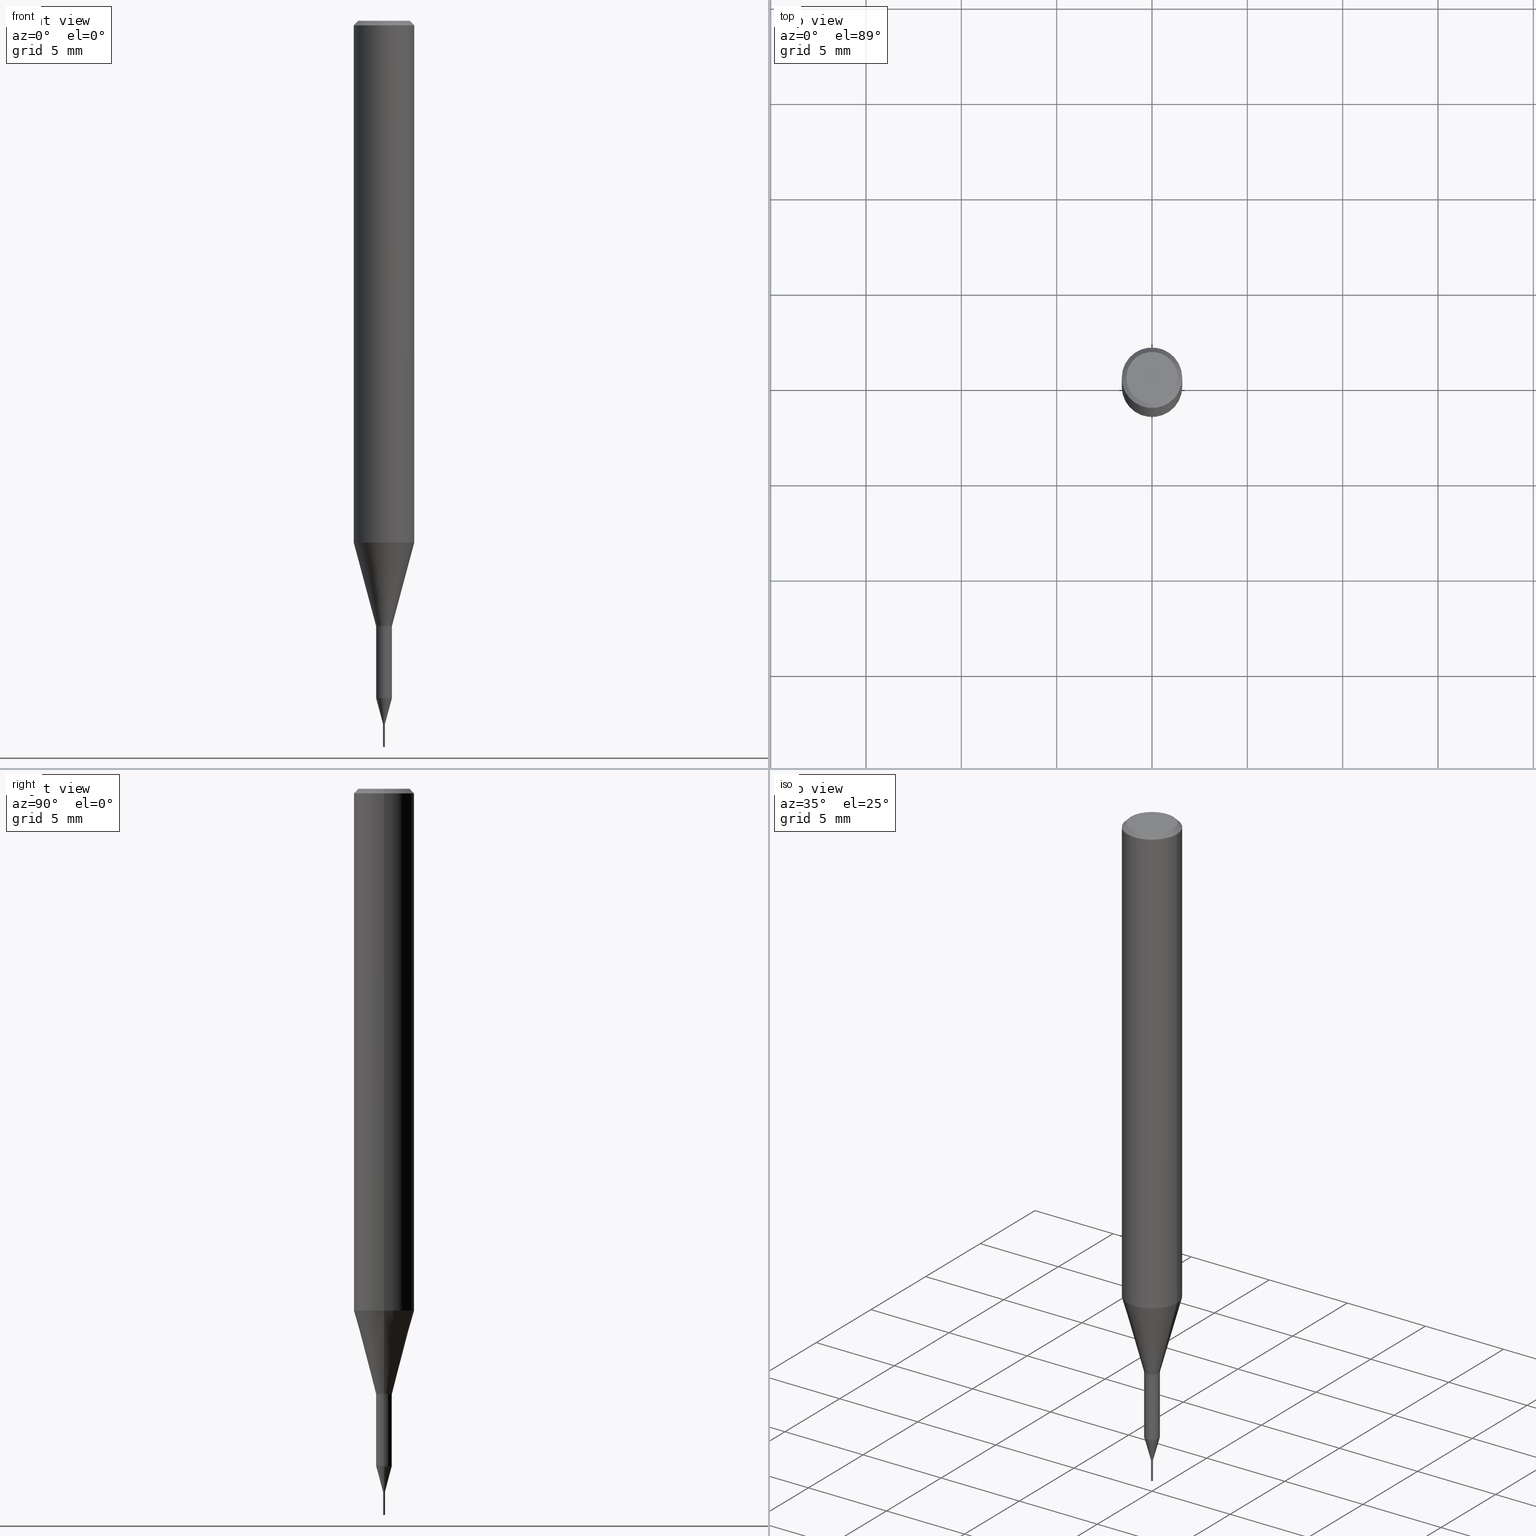
[diagram: canonical four-view strip — front | top / right | iso, engineering-drawing reading convention]
A machine part, canonical four-view strip (front | top / right | iso — engineering-drawing reading convention). The complete STEP part file that produces these views, byte-faithful:
ISO-10303-21;
HEADER;
FILE_DESCRIPTION (( 'STEP AP203' ),
    '1' );
FILE_NAME ('07088.STEP',
    '2024-04-19T13:29:47',
    ( '' ),
    ( '' ),
    'SwSTEP 2.0',
    'SolidWorks 2023',
    '' );
FILE_SCHEMA (( 'CONFIG_CONTROL_DESIGN' ));
ENDSEC;

DATA;
#1 = CARTESIAN_POINT ( 'NONE',  ( -0.06250000000000000000, 4.037025298037369984E-16, -0.009375000000000060368 ) ) ;
#2 = EDGE_CURVE ( 'NONE', #25, #162, #123, .T. ) ;
#3 = DIRECTION ( 'NONE',  ( -2.445468806185136597E-29, 3.491481338843145583E-15, 1.000000000000000000 ) ) ;
#4 = VECTOR ( 'NONE', #464, 39.37007874015748854 ) ;
#5 = AXIS2_PLACEMENT_3D ( 'NONE', #499, #407, #282 ) ;
#6 = FACE_OUTER_BOUND ( 'NONE', #204, .T. ) ;
#7 = DIRECTION ( 'NONE',  ( 1.000000000000000000, -6.982962677686258033E-15, 0.000000000000000000 ) ) ;
#8 = PLANE ( 'NONE',  #51 ) ;
#9 = ORIENTED_EDGE ( 'NONE', *, *, #19, .T. ) ;
#10 = EDGE_CURVE ( 'NONE', #257, #356, #535, .T. ) ;
#11 = CARTESIAN_POINT ( 'NONE',  ( 3.570384457030299835E-29, -5.097562754710993158E-15, -1.459999999999999964 ) ) ;
#12 = PERSON_AND_ORGANIZATION_ROLE ( 'design_supplier' ) ;
#13 = CIRCLE ( 'NONE', #309, 0.01624999999999999709 ) ;
#14 = DIRECTION ( 'NONE',  ( -2.445468806185136597E-29, 3.491481338843145583E-15, 1.000000000000000000 ) ) ;
#15 = CC_DESIGN_APPROVAL ( #29, ( #164 ) ) ;
#16 = CARTESIAN_POINT ( 'NONE',  ( 0.05312499999999999861, -4.129888592719939842E-16, -5.787680772767651417E-18 ) ) ;
#17 = DIRECTION ( 'NONE',  ( 1.000000000000000000, -6.982962677686258033E-15, 0.000000000000000000 ) ) ;
#18 = COORDINATED_UNIVERSAL_TIME_OFFSET ( 5, 0, .BEHIND. ) ;
#19 = EDGE_CURVE ( 'NONE', #200, #25, #244, .T. ) ;
#20 = ORIENTED_EDGE ( 'NONE', *, *, #260, .F. ) ;
#21 = FACE_OUTER_BOUND ( 'NONE', #283, .T. ) ;
#22 = EDGE_CURVE ( 'NONE', #178, #585, #268, .T. ) ;
#23 = CARTESIAN_POINT ( 'NONE',  ( 3.569161722627207033E-29, -5.095817014041571654E-15, -1.459500000000000020 ) ) ;
#24 = CIRCLE ( 'NONE', #333, 0.01624999999999999709 ) ;
#25 = VERTEX_POINT ( 'NONE', #211 ) ;
#26 = AXIS2_PLACEMENT_3D ( 'NONE', #147, #565, #526 ) ;
#27 = DIRECTION ( 'NONE',  ( -2.445468806185136877E-29, 3.491481338843145188E-15, 1.000000000000000000 ) ) ;
#28 = EDGE_LOOP ( 'NONE', ( #489, #231, #439, #350 ) ) ;
#29 = APPROVAL ( #65, 'UNSPECIFIED' ) ;
#30 = ADVANCED_FACE ( 'NONE', ( #408 ), #507, .T. ) ;
#31 = CARTESIAN_POINT ( 'NONE',  ( 3.570384457030299835E-29, -5.097562754710993158E-15, -1.459999999999999964 ) ) ;
#32 = ORIENTED_EDGE ( 'NONE', *, *, #10, .T. ) ;
#33 = ORIENTED_EDGE ( 'NONE', *, *, #531, .T. ) ;
#34 = MANIFOLD_SOLID_BREP ( 'Body-Move/Copy2[2]', #440 ) ;
#35 = VECTOR ( 'NONE', #140, 39.37007874015748854 ) ;
#36 = APPROVAL_PERSON_ORGANIZATION ( #90, #114, #55 ) ;
#37 = ADVANCED_FACE ( 'NONE', ( #400 ), #447, .F. ) ;
#38 = ORIENTED_EDGE ( 'NONE', *, *, #367, .F. ) ;
#39 = DIRECTION ( 'NONE',  ( -2.438088387897960049E-29, 3.491481338843145188E-15, 1.000000000000000000 ) ) ;
#40 = ADVANCED_FACE ( 'NONE', ( #117 ), #133, .T. ) ;
#41 = MANIFOLD_SOLID_BREP ( 'Body-Move/Copy2[1]', #166 ) ;
#42 = ORIENTED_EDGE ( 'NONE', *, *, #393, .F. ) ;
#43 = CC_DESIGN_PERSON_AND_ORGANIZATION_ASSIGNMENT ( #516, #57, ( #164 ) ) ;
#44 = DIRECTION ( 'NONE',  ( -2.445468806185136597E-29, 3.491481338843145583E-15, 1.000000000000000000 ) ) ;
#45 = VECTOR ( 'NONE', #339, 39.37007874015747433 ) ;
#46 = AXIS2_PLACEMENT_3D ( 'NONE', #285, #328, #559 ) ;
#47 = CARTESIAN_POINT ( 'NONE',  ( 0.000000000000000000, 0.000000000000000000, 0.000000000000000000 ) ) ;
#48 = EDGE_CURVE ( 'NONE', #178, #162, #79, .T. ) ;
#49 = EDGE_LOOP ( 'NONE', ( #490, #20 ) ) ;
#50 = DIRECTION ( 'NONE',  ( 1.000000000000000000, -6.982962677686264344E-15, 0.000000000000000000 ) ) ;
#51 = AXIS2_PLACEMENT_3D ( 'NONE', #86, #457, #511 ) ;
#52 = ORIENTED_EDGE ( 'NONE', *, *, #202, .T. ) ;
#53 = APPROVAL_PERSON_ORGANIZATION ( #436, #294, #569 ) ;
#54 = ADVANCED_FACE ( 'NONE', ( #187 ), #275, .T. ) ;
#55 = APPROVAL_ROLE ( '' ) ;
#56 = CARTESIAN_POINT ( 'NONE',  ( -0.01625000000000000056, -4.768484712498295341E-15, -1.398818275992143922 ) ) ;
#57 = PERSON_AND_ORGANIZATION_ROLE ( 'creator' ) ;
#58 = EDGE_CURVE ( 'NONE', #391, #25, #152, .T. ) ;
#59 = FACE_OUTER_BOUND ( 'NONE', #503, .T. ) ;
#60 = CARTESIAN_POINT ( 'NONE',  ( -1.396592535533682871E-17, -0.002000000000005097960, -1.459999999999999964 ) ) ;
#61 = AXIS2_PLACEMENT_3D ( 'NONE', #31, #214, #541 ) ;
#62 = AXIS2_PLACEMENT_3D ( 'NONE', #502, #410, #227 ) ;
#63 = DIRECTION ( 'NONE',  ( 2.461818195733172515E-29, -3.468068082460894112E-15, -1.000000000000000000 ) ) ;
#64 = CARTESIAN_POINT ( 'NONE',  ( -0.002000000000000074201, -5.068513104305707967E-15, -1.452000000000000179 ) ) ;
#65 = APPROVAL_STATUS ( 'not_yet_approved' ) ;
#66 = ORIENTED_EDGE ( 'NONE', *, *, #175, .T. ) ;
#67 = ORIENTED_EDGE ( 'NONE', *, *, #365, .F. ) ;
#68 = CARTESIAN_POINT ( 'NONE',  ( 0.000000000000000000, 0.000000000000000000, 0.000000000000000000 ) ) ;
#69 = EDGE_LOOP ( 'NONE', ( #52, #542, #91, #233 ) ) ;
#70 = ORIENTED_EDGE ( 'NONE', *, *, #139, .T. ) ;
#71 = CYLINDRICAL_SURFACE ( 'NONE', #106, 0.01624999999999999709 ) ;
#72 = AXIS2_PLACEMENT_3D ( 'NONE', #23, #406, #127 ) ;
#73 = AXIS2_PLACEMENT_3D ( 'NONE', #523, #63, #346 ) ;
#74 = ORIENTED_EDGE ( 'NONE', *, *, #539, .F. ) ;
#75 = EDGE_CURVE ( 'NONE', #262, #530, #195, .T. ) ;
#76 = CARTESIAN_POINT ( 'NONE',  ( -1.396592535533587345E-17, -0.002000000000005232401, -1.498798278761945157 ) ) ;
#77 = EDGE_CURVE ( 'NONE', #170, #483, #360, .T. ) ;
#78 = CARTESIAN_POINT ( 'NONE',  ( 2.292627005798580623E-31, -3.273263755165470184E-17, -0.009375000000000060368 ) ) ;
#79 = CIRCLE ( 'NONE', #561, 0.01625000000000000056 ) ;
#80 = DIRECTION ( 'NONE',  ( 2.445468806185136597E-29, -3.491481338843145583E-15, -1.000000000000000000 ) ) ;
#81 = ORIENTED_EDGE ( 'NONE', *, *, #48, .F. ) ;
#82 = EDGE_CURVE ( 'NONE', #585, #403, #13, .T. ) ;
#83 = CARTESIAN_POINT ( 'NONE',  ( 1.421085471523866447E-17, 0.001999999999994902557, -1.459999999999999964 ) ) ;
#84 = ORIENTED_EDGE ( 'NONE', *, *, #75, .F. ) ;
#85 = ORIENTED_EDGE ( 'NONE', *, *, #365, .T. ) ;
#86 = CARTESIAN_POINT ( 'NONE',  ( 7.076796394983739835E-47, -1.010378970665454992E-32, -2.893840386385196200E-18 ) ) ;
#87 = ORIENTED_EDGE ( 'NONE', *, *, #82, .F. ) ;
#88 = AXIS2_PLACEMENT_3D ( 'NONE', #475, #524, #343 ) ;
#89 = AXIS2_PLACEMENT_3D ( 'NONE', #130, #176, #319 ) ;
#90 = PERSON_AND_ORGANIZATION ( #253, #217 ) ;
#91 = ORIENTED_EDGE ( 'NONE', *, *, #531, .F. ) ;
#92 = DIRECTION ( 'NONE',  ( -2.445468806185136877E-29, 3.491481338843145188E-15, 1.000000000000000000 ) ) ;
#93 = EDGE_CURVE ( 'NONE', #437, #353, #332, .T. ) ;
#94 = ORIENTED_EDGE ( 'NONE', *, *, #521, .T. ) ;
#95 = LINE ( 'NONE', #558, #549 ) ;
#96 = AXIS2_PLACEMENT_3D ( 'NONE', #223, #568, #477 ) ;
#97 = EDGE_LOOP ( 'NONE', ( #216, #141, #105, #38 ) ) ;
#98 = AXIS2_PLACEMENT_3D ( 'NONE', #461, #327, #518 ) ;
#99 = LINE ( 'NONE', #230, #536 ) ;
#100 = CC_DESIGN_DATE_AND_TIME_ASSIGNMENT ( #194, #472, ( #219 ) ) ;
#101 = CARTESIAN_POINT ( 'NONE',  ( 0.01625000000000000056, -4.997421050571713203E-15, -1.398818275992143922 ) ) ;
#102 = CARTESIAN_POINT ( 'NONE',  ( -0.06250000000000006939, 4.440892098500631092E-16, -3.074334431409319267E-30 ) ) ;
#103 = PERSON_AND_ORGANIZATION ( #253, #217 ) ;
#104 = LINE ( 'NONE', #381, #208 ) ;
#105 = ORIENTED_EDGE ( 'NONE', *, *, #445, .T. ) ;
#106 = AXIS2_PLACEMENT_3D ( 'NONE', #68, #349, #197 ) ;
#107 =( CONVERSION_BASED_UNIT ( 'INCH', #388 ) LENGTH_UNIT ( ) NAMED_UNIT ( #486 ) );
#108 = CC_DESIGN_APPROVAL ( #114, ( #219 ) ) ;
#109 = ADVANCED_FACE ( 'NONE', ( #6 ), #198, .T. ) ;
#110 = DIRECTION ( 'NONE',  ( -2.461818195733173075E-29, 3.468068082460893717E-15, 1.000000000000000000 ) ) ;
#111 = CARTESIAN_POINT ( 'NONE',  ( 3.570384457030299835E-29, -5.097562754710993158E-15, -1.459999999999999964 ) ) ;
#112 = DIRECTION ( 'NONE',  ( -2.445468806185136597E-29, 3.491481338843145583E-15, 1.000000000000000000 ) ) ;
#113 = CARTESIAN_POINT ( 'NONE',  ( -0.06250000000000012490, -3.317607122755211895E-15, -1.077392650149939346 ) ) ;
#114 = APPROVAL ( #335, 'UNSPECIFIED' ) ;
#115 = ORIENTED_EDGE ( 'NONE', *, *, #202, .F. ) ;
#116 = DIRECTION ( 'NONE',  ( 0.2588190451025214611, 1.565188264969621573E-15, 0.9659258262890682012 ) ) ;
#117 = FACE_OUTER_BOUND ( 'NONE', #469, .T. ) ;
#118 = CONICAL_SURFACE ( 'NONE', #420, 65.52281426577367540, 1.029744258676689839 ) ;
#119 = ORIENTED_EDGE ( 'NONE', *, *, #145, .F. ) ;
#120 = EDGE_LOOP ( 'NONE', ( #174, #9, #494, #81 ) ) ;
#121 = DIRECTION ( 'NONE',  ( -2.445468806185136597E-29, 3.491481338843145583E-15, 1.000000000000000000 ) ) ;
#122 = EDGE_LOOP ( 'NONE', ( #128, #287 ) ) ;
#123 = LINE ( 'NONE', #276, #544 ) ;
#124 = DIRECTION ( 'NONE',  ( 0.2588190451025203509, 1.565188264969630053E-15, 0.9659258262890684232 ) ) ;
#125 = VERTEX_POINT ( 'NONE', #326 ) ;
#126 = AXIS2_PLACEMENT_3D ( 'NONE', #249, #264, #389 ) ;
#127 = DIRECTION ( 'NONE',  ( 1.000000000000000000, -6.982962677686255667E-15, 0.000000000000000000 ) ) ;
#128 = ORIENTED_EDGE ( 'NONE', *, *, #77, .T. ) ;
#129 = CARTESIAN_POINT ( 'NONE',  ( 3.056836007731421306E-29, -4.364351673553932471E-15, -1.250000000000000000 ) ) ;
#130 = CARTESIAN_POINT ( 'NONE',  ( 3.570384457030299835E-29, -5.097562754710993158E-15, -1.459999999999999964 ) ) ;
#131 = EDGE_CURVE ( 'NONE', #252, #391, #104, .T. ) ;
#132 = DIRECTION ( 'NONE',  ( -2.445468806185136597E-29, 3.491481338843145583E-15, 1.000000000000000000 ) ) ;
#133 = CYLINDRICAL_SURFACE ( 'NONE', #508, 0.002000000000000048180 ) ;
#134 = EDGE_LOOP ( 'NONE', ( #293, #401, #572, #74 ) ) ;
#135 = DIRECTION ( 'NONE',  ( 1.000000000000000000, -6.982962677686266711E-15, 4.875930095424100059E-29 ) ) ;
#136 = AXIS2_PLACEMENT_3D ( 'NONE', #589, #192, #417 ) ;
#137 = ORIENTED_EDGE ( 'NONE', *, *, #163, .F. ) ;
#138 = VECTOR ( 'NONE', #291, 39.37007874015748143 ) ;
#139 = EDGE_CURVE ( 'NONE', #252, #437, #458, .T. ) ;
#140 = DIRECTION ( 'NONE',  ( -0.7071067811865454633, 2.468850131082235761E-15, -0.7071067811865493491 ) ) ;
#141 = ORIENTED_EDGE ( 'NONE', *, *, #504, .T. ) ;
#142 = DIRECTION ( 'NONE',  ( -2.461818195733173075E-29, 3.468068082460894112E-15, 1.000000000000000000 ) ) ;
#143 = EDGE_CURVE ( 'NONE', #585, #422, #149, .T. ) ;
#144 = ORIENTED_EDGE ( 'NONE', *, *, #148, .F. ) ;
#145 = EDGE_CURVE ( 'NONE', #356, #257, #449, .T. ) ;
#146 = CYLINDRICAL_SURFACE ( 'NONE', #303, 0.06250000000000006939 ) ;
#147 = CARTESIAN_POINT ( 'NONE',  ( 1.415359278996747967E-46, -2.020757941330909984E-32, -5.787680772770392401E-18 ) ) ;
#148 = EDGE_CURVE ( 'NONE', #392, #418, #290, .T. ) ;
#149 = LINE ( 'NONE', #428, #45 ) ;
#150 = DATE_AND_TIME ( #292, #370 ) ;
#151 = PLANE ( 'NONE',  #73 ) ;
#152 = LINE ( 'NONE', #237, #171 ) ;
#153 = CARTESIAN_POINT ( 'NONE',  ( 1.415359278996747967E-46, -2.020757941330909984E-32, -5.787680772770392401E-18 ) ) ;
#154 = CARTESIAN_POINT ( 'NONE',  ( 3.693145918954258114E-29, -5.202102123691339984E-15, -1.500000000000000222 ) ) ;
#155 = EDGE_LOOP ( 'NONE', ( #70, #575, #376, #218 ) ) ;
#156 = AXIS2_PLACEMENT_3D ( 'NONE', #222, #318, #586 ) ;
#157 = ORIENTED_EDGE ( 'NONE', *, *, #77, .F. ) ;
#158 = LOCAL_TIME ( 9, 29, 47.00000000000000000, #427 ) ;
#159 = CARTESIAN_POINT ( 'NONE',  ( 0.06250000000000000000, -4.691678049070463404E-16, -0.009375000000000060368 ) ) ;
#160 = EDGE_CURVE ( 'NONE', #257, #170, #567, .T. ) ;
#161 = DIRECTION ( 'NONE',  ( 1.000000000000000000, -6.982962677686265922E-15, 4.876176775795935793E-29 ) ) ;
#162 = VERTEX_POINT ( 'NONE', #101 ) ;
#163 = EDGE_CURVE ( 'NONE', #403, #585, #24, .T. ) ;
#164 = PRODUCT_DEFINITION ( 'UNKNOWN', '', #570, #513 ) ;
#165 = ORIENTED_EDGE ( 'NONE', *, *, #75, .T. ) ;
#166 = CLOSED_SHELL ( 'NONE', ( #462, #500, #273, #54, #590 ) ) ;
#167 = ORIENTED_EDGE ( 'NONE', *, *, #414, .F. ) ;
#168 = DIRECTION ( 'NONE',  ( -2.445468806185136877E-29, 3.491481338843145188E-15, 1.000000000000000000 ) ) ;
#169 = CARTESIAN_POINT ( 'NONE',  ( 3.570384457030299835E-29, -5.097562754710993158E-15, -1.459999999999999964 ) ) ;
#170 = VERTEX_POINT ( 'NONE', #60 ) ;
#171 = VECTOR ( 'NONE', #525, 39.37007874015748143 ) ;
#172 = CIRCLE ( 'NONE', #46, 0.06250000000000012490 ) ;
#173 = CARTESIAN_POINT ( 'NONE',  ( 2.634730117954813298E-29, -3.761696332605275695E-15, -1.077392650149939346 ) ) ;
#174 = ORIENTED_EDGE ( 'NONE', *, *, #380, .F. ) ;
#175 = EDGE_CURVE ( 'NONE', #125, #257, #95, .T. ) ;
#176 = DIRECTION ( 'NONE',  ( -2.461818195733173075E-29, 3.468068082460893717E-15, 1.000000000000000000 ) ) ;
#177 = ORIENTED_EDGE ( 'NONE', *, *, #521, .F. ) ;
#178 = VERTEX_POINT ( 'NONE', #480 ) ;
#179 = CC_DESIGN_PERSON_AND_ORGANIZATION_ASSIGNMENT ( #284, #12, ( #570 ) ) ;
#180 = AXIS2_PLACEMENT_3D ( 'NONE', #491, #121, #316 ) ;
#181 = CALENDAR_DATE ( 2024, 19, 4 ) ;
#182 = ORIENTED_EDGE ( 'NONE', *, *, #143, .F. ) ;
#183 = CIRCLE ( 'NONE', #362, 0.002000000000000022159 ) ;
#184 = FACE_OUTER_BOUND ( 'NONE', #215, .T. ) ;
#185 = APPROVAL_ROLE ( '' ) ;
#186 = CARTESIAN_POINT ( 'NONE',  ( 3.665898765649584069E-29, -5.232117826939714997E-15, -1.498798278761945157 ) ) ;
#187 = FACE_OUTER_BOUND ( 'NONE', #479, .T. ) ;
#188 = COORDINATED_UNIVERSAL_TIME_OFFSET ( 5, 0, .BEHIND. ) ;
#189 = CARTESIAN_POINT ( 'NONE',  ( -0.002000000000000022159, -5.081606159326369638E-15, -1.459500000000000020 ) ) ;
#190 = ORIENTED_EDGE ( 'NONE', *, *, #131, .T. ) ;
#191 = CARTESIAN_POINT ( 'NONE',  ( 2.292627005798580623E-31, -3.273263755165470184E-17, -0.009375000000000060368 ) ) ;
#192 = DIRECTION ( 'NONE',  ( -2.445468806185136597E-29, 3.491481338843145583E-15, 1.000000000000000000 ) ) ;
#193 = CALENDAR_DATE ( 2024, 19, 4 ) ;
#194 = DATE_AND_TIME ( #181, #306 ) ;
#195 = CIRCLE ( 'NONE', #576, 0.05312499999999999861 ) ;
#196 = CONICAL_SURFACE ( 'NONE', #98, 65.52281426577367540, 1.029744258676689839 ) ;
#197 = DIRECTION ( 'NONE',  ( 1.000000000000000000, -6.982962677686267499E-15, 4.876176775795936353E-29 ) ) ;
#198 = CYLINDRICAL_SURFACE ( 'NONE', #88, 0.01624999999999999709 ) ;
#199 = ORIENTED_EDGE ( 'NONE', *, *, #58, .F. ) ;
#200 = VERTEX_POINT ( 'NONE', #64 ) ;
#201 = CARTESIAN_POINT ( 'NONE',  ( 0.01624999999999999709, -4.477824817066334148E-15, -1.250000000000000000 ) ) ;
#202 = EDGE_CURVE ( 'NONE', #25, #200, #481, .T. ) ;
#203 = DATE_TIME_ROLE ( 'creation_date' ) ;
#204 = EDGE_LOOP ( 'NONE', ( #582, #557, #402, #87 ) ) ;
#205 = ORIENTED_EDGE ( 'NONE', *, *, #527, .F. ) ;
#206 = CARTESIAN_POINT ( 'NONE',  ( 0.000000000000000000, 0.000000000000000000, 0.000000000000000000 ) ) ;
#207 = CARTESIAN_POINT ( 'NONE',  ( 2.292627005798580623E-31, -3.273263755165470184E-17, -0.009375000000000060368 ) ) ;
#208 = VECTOR ( 'NONE', #470, 39.37007874015748854 ) ;
#209 = AXIS2_PLACEMENT_3D ( 'NONE', #173, #363, #424 ) ;
#210 = ADVANCED_FACE ( 'NONE', ( #476 ), #146, .T. ) ;
#211 = CARTESIAN_POINT ( 'NONE',  ( 0.002000000000000074201, -5.083596829355621130E-15, -1.452000000000000179 ) ) ;
#212 = CC_DESIGN_PERSON_AND_ORGANIZATION_ASSIGNMENT ( #564, #374, ( #570 ) ) ;
#213 = DIRECTION ( 'NONE',  ( -6.982962677686266711E-15, -1.000000000000000000, 0.000000000000000000 ) ) ;
#214 = DIRECTION ( 'NONE',  ( -2.445468806185136597E-29, 3.491481338843145583E-15, 1.000000000000000000 ) ) ;
#215 = EDGE_LOOP ( 'NONE', ( #165, #307 ) ) ;
#216 = ORIENTED_EDGE ( 'NONE', *, *, #384, .F. ) ;
#217 = ORGANIZATION ( 'UNSPECIFIED', 'UNSPECIFIED', '' ) ;
#218 = ORIENTED_EDGE ( 'NONE', *, *, #131, .F. ) ;
#219 = SECURITY_CLASSIFICATION ( '', '', #510 ) ;
#220 = FACE_OUTER_BOUND ( 'NONE', #532, .T. ) ;
#221 = CARTESIAN_POINT ( 'NONE',  ( 3.665898765649584069E-29, -5.232117826939714997E-15, -1.498798278761945157 ) ) ;
#222 = CARTESIAN_POINT ( 'NONE',  ( 3.570384457030299835E-29, -5.097562754710993158E-15, -1.459999999999999964 ) ) ;
#223 = CARTESIAN_POINT ( 'NONE',  ( 3.570384457030299835E-29, -5.097562754710993158E-15, -1.459999999999999964 ) ) ;
#224 = VECTOR ( 'NONE', #92, 39.37007874015748143 ) ;
#225 = CARTESIAN_POINT ( 'NONE',  ( 2.634730117954813298E-29, -3.761696332605275695E-15, -1.077392650149939346 ) ) ;
#226 = DIRECTION ( 'NONE',  ( -2.445468806185136597E-29, 3.491481338843145583E-15, 1.000000000000000000 ) ) ;
#227 = DIRECTION ( 'NONE',  ( 1.000000000000000000, -6.982962677686266711E-15, 0.000000000000000000 ) ) ;
#228 = SHAPE_DEFINITION_REPRESENTATION ( #300, #355 ) ;
#229 = CC_DESIGN_PERSON_AND_ORGANIZATION_ASSIGNMENT ( #383, #378, ( #219 ) ) ;
#230 = CARTESIAN_POINT ( 'NONE',  ( 0.06250000000000000000, -4.615137624123753937E-16, -0.009375000000000060368 ) ) ;
#231 = ORIENTED_EDGE ( 'NONE', *, *, #527, .T. ) ;
#232 = CARTESIAN_POINT ( 'NONE',  ( 2.634730117954813298E-29, -3.761696332605275695E-15, -1.077392650149939346 ) ) ;
#233 = ORIENTED_EDGE ( 'NONE', *, *, #2, .F. ) ;
#234 = DIRECTION ( 'NONE',  ( -2.445468806185136597E-29, 3.491481338843145583E-15, 1.000000000000000000 ) ) ;
#235 = APPROVAL_PERSON_ORGANIZATION ( #522, #29, #185 ) ;
#236 = APPLICATION_CONTEXT ( 'configuration controlled 3d designs of mechanical parts and assemblies' ) ;
#237 = CARTESIAN_POINT ( 'NONE',  ( 0.002000000000000048180, -1.396592535537286980E-17, 9.752353551592105778E-32 ) ) ;
#238 = DIRECTION ( 'NONE',  ( -2.445468806185136597E-29, 3.491481338843145583E-15, 1.000000000000000000 ) ) ;
#239 = DIRECTION ( 'NONE',  ( 1.000000000000000000, -6.982962677686266711E-15, 4.876176775795935793E-29 ) ) ;
#240 = COORDINATED_UNIVERSAL_TIME_OFFSET ( 5, 0, .BEHIND. ) ;
#241 = DIRECTION ( 'NONE',  ( 1.000000000000000000, -6.982962677686255667E-15, 0.000000000000000000 ) ) ;
#242 = MECHANICAL_CONTEXT ( 'NONE', #361, 'mechanical' ) ;
#243 = DIRECTION ( 'NONE',  ( -5.985567269336070653E-15, -0.8571673007021287649, 0.5150380749100268440 ) ) ;
#244 = CIRCLE ( 'NONE', #180, 0.002000000000000074201 ) ;
#245 = VECTOR ( 'NONE', #142, 39.37007874015748143 ) ;
#246 = ORIENTED_EDGE ( 'NONE', *, *, #279, .F. ) ;
#247 = AXIS2_PLACEMENT_3D ( 'NONE', #169, #274, #453 ) ;
#248 =( LENGTH_UNIT ( ) NAMED_UNIT ( * ) SI_UNIT ( $, .METRE. ) );
#249 = CARTESIAN_POINT ( 'NONE',  ( 3.550820706580818935E-29, -5.069630904000248312E-15, -1.452000000000000179 ) ) ;
#250 = DIRECTION ( 'NONE',  ( -0.2588190451025203509, 5.211531920934543942E-15, 0.9659258262890684232 ) ) ;
#251 = APPROVAL_STATUS ( 'not_yet_approved' ) ;
#252 = VERTEX_POINT ( 'NONE', #256 ) ;
#253 = PERSON ( 'UNSPECIFIED', 'UNSPECIFIED', 'UNSPECIFIED', ('UNSPECIFIED'), ('UNSPECIFIED'), ('UNSPECIFIED') ) ;
#254 = EDGE_LOOP ( 'NONE', ( #205, #85, #578, #144 ) ) ;
#255 = EDGE_CURVE ( 'NONE', #353, #391, #588, .T. ) ;
#256 = CARTESIAN_POINT ( 'NONE',  ( 0.001500000000000000248, -5.108037198727522179E-15, -1.459999999999999964 ) ) ;
#257 = VERTEX_POINT ( 'NONE', #76 ) ;
#258 = AXIS2_PLACEMENT_3D ( 'NONE', #270, #39, #161 ) ;
#259 = CARTESIAN_POINT ( 'NONE',  ( -0.002000000000000048180, 1.421085471520234606E-17, -9.837870180510048138E-32 ) ) ;
#260 = EDGE_CURVE ( 'NONE', #437, #252, #368, .T. ) ;
#261 = ORIENTED_EDGE ( 'NONE', *, *, #367, .T. ) ;
#262 = VERTEX_POINT ( 'NONE', #498 ) ;
#263 =( NAMED_UNIT ( * ) SI_UNIT ( $, .STERADIAN. ) SOLID_ANGLE_UNIT ( ) );
#264 = DIRECTION ( 'NONE',  ( -2.445468806185136597E-29, 3.491481338843145583E-15, 1.000000000000000000 ) ) ;
#265 = DIRECTION ( 'NONE',  ( -1.000000000000000000, 6.982962677686266711E-15, 0.000000000000000000 ) ) ;
#266 = EDGE_CURVE ( 'NONE', #345, #418, #354, .T. ) ;
#267 = ORIENTED_EDGE ( 'NONE', *, *, #22, .T. ) ;
#268 = LINE ( 'NONE', #312, #396 ) ;
#269 = VECTOR ( 'NONE', #250, 39.37007874015748143 ) ;
#270 = CARTESIAN_POINT ( 'NONE',  ( 3.570384457030299835E-29, -5.097562754710993158E-15, -1.459999999999999964 ) ) ;
#271 = FACE_OUTER_BOUND ( 'NONE', #321, .T. ) ;
#272 = ORIENTED_EDGE ( 'NONE', *, *, #160, .T. ) ;
#273 = ADVANCED_FACE ( 'NONE', ( #271 ), #118, .T. ) ;
#274 = DIRECTION ( 'NONE',  ( -2.445468806185136597E-29, 3.491481338843145583E-15, 1.000000000000000000 ) ) ;
#275 = CYLINDRICAL_SURFACE ( 'NONE', #96, 0.001999999999999999608 ) ;
#276 = CARTESIAN_POINT ( 'NONE',  ( 0.01625000000000000056, -4.997421050571713203E-15, -1.398818275992143922 ) ) ;
#277 = DIRECTION ( 'NONE',  ( -2.445468806185136877E-29, 3.491481338843145188E-15, 1.000000000000000000 ) ) ;
#278 = CYLINDRICAL_SURFACE ( 'NONE', #89, 0.001999999999999999608 ) ;
#279 = EDGE_CURVE ( 'NONE', #162, #403, #583, .T. ) ;
#280 = AXIS2_PLACEMENT_3D ( 'NONE', #191, #387, #289 ) ;
#281 =( GEOMETRIC_REPRESENTATION_CONTEXT ( 3 ) GLOBAL_UNCERTAINTY_ASSIGNED_CONTEXT ( ( #315 ) ) GLOBAL_UNIT_ASSIGNED_CONTEXT ( ( #107, #311, #263 ) ) REPRESENTATION_CONTEXT ( 'NONE', 'WORKASPACE' ) );
#282 = DIRECTION ( 'NONE',  ( 1.000000000000000000, -6.982962677686266711E-15, 4.876176775795935232E-29 ) ) ;
#283 = EDGE_LOOP ( 'NONE', ( #398, #84, #261, #463 ) ) ;
#284 = PERSON_AND_ORGANIZATION ( #253, #217 ) ;
#285 = CARTESIAN_POINT ( 'NONE',  ( 2.634730117954813298E-29, -3.761696332605275695E-15, -1.077392650149939346 ) ) ;
#286 = CARTESIAN_POINT ( 'NONE',  ( 0.06250000000000012490, -4.198131499960668153E-15, -1.077392650149939346 ) ) ;
#287 = ORIENTED_EDGE ( 'NONE', *, *, #393, .T. ) ;
#288 = CARTESIAN_POINT ( 'NONE',  ( 3.420766459460459311E-29, -4.883947907059311527E-15, -1.398818275992143922 ) ) ;
#289 = DIRECTION ( 'NONE',  ( 1.000000000000000000, -6.982962677686266711E-15, 0.000000000000000000 ) ) ;
#290 = CIRCLE ( 'NONE', #280, 0.06250000000000000000 ) ;
#291 = DIRECTION ( 'NONE',  ( -2.461818195733173075E-29, 3.468068082460894112E-15, 1.000000000000000000 ) ) ;
#292 = CALENDAR_DATE ( 2024, 19, 4 ) ;
#293 = ORIENTED_EDGE ( 'NONE', *, *, #163, .T. ) ;
#294 = APPROVAL ( #251, 'UNSPECIFIED' ) ;
#295 = APPROVAL_DATE_TIME ( #515, #294 ) ;
#296 = CARTESIAN_POINT ( 'NONE',  ( 3.569161722627207033E-29, -5.095817014041571654E-15, -1.459500000000000020 ) ) ;
#297 = ADVANCED_FACE ( 'NONE', ( #455 ), #317, .T. ) ;
#298 = DIRECTION ( 'NONE',  ( -2.445468806185136597E-29, 3.491481338843145583E-15, 1.000000000000000000 ) ) ;
#299 = CARTESIAN_POINT ( 'NONE',  ( 3.570384457030299835E-29, -5.097562754710993158E-15, -1.459999999999999964 ) ) ;
#300 = PRODUCT_DEFINITION_SHAPE ( 'NONE', 'NONE',  #164 ) ;
#301 = CARTESIAN_POINT ( 'NONE',  ( 3.056836007731421306E-29, -4.364351673553932471E-15, -1.250000000000000000 ) ) ;
#302 = EDGE_CURVE ( 'NONE', #345, #422, #382, .T. ) ;
#303 = AXIS2_PLACEMENT_3D ( 'NONE', #206, #112, #239 ) ;
#304 = AXIS2_PLACEMENT_3D ( 'NONE', #299, #110, #344 ) ;
#305 = APPLICATION_PROTOCOL_DEFINITION ( 'international standard', 'config_control_design', 1994, #236 ) ;
#306 = LOCAL_TIME ( 9, 29, 47.00000000000000000, #188 ) ;
#307 = ORIENTED_EDGE ( 'NONE', *, *, #384, .T. ) ;
#308 = CARTESIAN_POINT ( 'NONE',  ( 0.002000000000000022159, -5.109782939396944472E-15, -1.459500000000000020 ) ) ;
#309 = AXIS2_PLACEMENT_3D ( 'NONE', #129, #44, #431 ) ;
#310 = AXIS2_PLACEMENT_3D ( 'NONE', #288, #394, #533 ) ;
#311 =( NAMED_UNIT ( * ) PLANE_ANGLE_UNIT ( ) SI_UNIT ( $, .RADIAN. ) );
#312 = CARTESIAN_POINT ( 'NONE',  ( -0.01624999999999999709, 1.154631945610162595E-16, -7.993269521664220284E-31 ) ) ;
#313 = DIRECTION ( 'NONE',  ( -2.461818195733173075E-29, 3.468068082460893717E-15, 1.000000000000000000 ) ) ;
#314 = DIRECTION ( 'NONE',  ( -2.445468806185136597E-29, 3.491481338843145583E-15, 1.000000000000000000 ) ) ;
#315 = UNCERTAINTY_MEASURE_WITH_UNIT (LENGTH_MEASURE( 1.000000000000000082E-05 ), #107, 'distance_accuracy_value', 'NONE');
#316 = DIRECTION ( 'NONE',  ( 1.000000000000000000, -6.982962677686074228E-15, 0.000000000000000000 ) ) ;
#317 = CONICAL_SURFACE ( 'NONE', #136, 0.01625000000000000056, 0.2617993877991490193 ) ;
#318 = DIRECTION ( 'NONE',  ( -2.461818195733173075E-29, 3.468068082460893717E-15, 1.000000000000000000 ) ) ;
#319 = DIRECTION ( 'NONE',  ( -6.982962677686265133E-15, -1.000000000000000000, 0.000000000000000000 ) ) ;
#320 = DIRECTION ( 'NONE',  ( -2.445468806185136597E-29, 3.491481338843145583E-15, 1.000000000000000000 ) ) ;
#321 = EDGE_LOOP ( 'NONE', ( #167, #66, #119 ) ) ;
#322 = AXIS2_PLACEMENT_3D ( 'NONE', #11, #238, #520 ) ;
#323 = AXIS2_PLACEMENT_3D ( 'NONE', #433, #351, #17 ) ;
#324 = CIRCLE ( 'NONE', #310, 0.01625000000000000056 ) ;
#325 = DATE_AND_TIME ( #371, #421 ) ;
#326 = CARTESIAN_POINT ( 'NONE',  ( 3.692727293599759753E-29, -5.202102123691340773E-15, -1.500000000000000222 ) ) ;
#327 = DIRECTION ( 'NONE',  ( -2.461818195733173075E-29, 3.468068082460893717E-15, 1.000000000000000000 ) ) ;
#328 = DIRECTION ( 'NONE',  ( -2.445468806185136597E-29, 3.491481338843145583E-15, 1.000000000000000000 ) ) ;
#329 = CARTESIAN_POINT ( 'NONE',  ( 1.421085471523866139E-17, 0.001999999999994768116, -1.498798278761945157 ) ) ;
#330 = APPROVAL_DATE_TIME ( #325, #29 ) ;
#331 = ORIENTED_EDGE ( 'NONE', *, *, #82, .T. ) ;
#332 = LINE ( 'NONE', #434, #4 ) ;
#333 = AXIS2_PLACEMENT_3D ( 'NONE', #301, #298, #377 ) ;
#334 = FACE_OUTER_BOUND ( 'NONE', #372, .T. ) ;
#335 = APPROVAL_STATUS ( 'not_yet_approved' ) ;
#336 = CARTESIAN_POINT ( 'NONE',  ( -0.06250000000000000000, -1.453125275228401137E-15, -0.009375000000000060368 ) ) ;
#337 = CONICAL_SURFACE ( 'NONE', #529, 0.001500000000000000248, 0.7853981633975710697 ) ;
#338 = DIRECTION ( 'NONE',  ( 1.000000000000000000, 0.000000000000000000, 0.000000000000000000 ) ) ;
#339 = DIRECTION ( 'NONE',  ( -0.2588190451025214611, 5.211531920934551042E-15, 0.9659258262890682012 ) ) ;
#340 = LINE ( 'NONE', #514, #138 ) ;
#341 = ADVANCED_FACE ( 'NONE', ( #184 ), #8, .F. ) ;
#342 = CARTESIAN_POINT ( 'NONE',  ( -0.01624999999999999709, -4.508686595745605419E-15, -1.250000000000000000 ) ) ;
#343 = DIRECTION ( 'NONE',  ( 1.000000000000000000, -6.982962677686267499E-15, 4.876176775795936353E-29 ) ) ;
#344 = DIRECTION ( 'NONE',  ( -6.982962677686266711E-15, -1.000000000000000000, 0.000000000000000000 ) ) ;
#345 = VERTEX_POINT ( 'NONE', #286 ) ;
#346 = DIRECTION ( 'NONE',  ( 6.982962677686265922E-15, 1.000000000000000000, -3.468068082460894112E-15 ) ) ;
#347 = VECTOR ( 'NONE', #168, 39.37007874015748143 ) ;
#348 = AXIS2_PLACEMENT_3D ( 'NONE', #554, #375, #338 ) ;
#349 = DIRECTION ( 'NONE',  ( -2.445468806185136597E-29, 3.491481338843145583E-15, 1.000000000000000000 ) ) ;
#350 = ORIENTED_EDGE ( 'NONE', *, *, #266, .F. ) ;
#351 = DIRECTION ( 'NONE',  ( -2.445468806185136597E-29, 3.491481338843145583E-15, 1.000000000000000000 ) ) ;
#352 = LINE ( 'NONE', #259, #405 ) ;
#353 = VERTEX_POINT ( 'NONE', #189 ) ;
#354 = LINE ( 'NONE', #579, #347 ) ;
#355 = ADVANCED_BREP_SHAPE_REPRESENTATION ( '07088', ( #41, #34, #348 ), #281 ) ;
#356 = VERTEX_POINT ( 'NONE', #329 ) ;
#357 = ORIENTED_EDGE ( 'NONE', *, *, #255, .F. ) ;
#358 = ORIENTED_EDGE ( 'NONE', *, *, #10, .F. ) ;
#359 = ADVANCED_FACE ( 'NONE', ( #426 ), #546, .T. ) ;
#360 = CIRCLE ( 'NONE', #156, 0.002000000000000000042 ) ;
#361 = APPLICATION_CONTEXT ( 'configuration controlled 3d designs of mechanical parts and assemblies' ) ;
#362 = AXIS2_PLACEMENT_3D ( 'NONE', #296, #473, #241 ) ;
#363 = DIRECTION ( 'NONE',  ( -2.445468806185136597E-29, 3.491481338843145583E-15, 1.000000000000000000 ) ) ;
#364 = ORIENTED_EDGE ( 'NONE', *, *, #539, .T. ) ;
#365 = EDGE_CURVE ( 'NONE', #422, #345, #172, .T. ) ;
#366 = ORIENTED_EDGE ( 'NONE', *, *, #537, .F. ) ;
#367 = EDGE_CURVE ( 'NONE', #262, #392, #416, .T. ) ;
#368 = CIRCLE ( 'NONE', #61, 0.001500000000000000248 ) ;
#369 = CIRCLE ( 'NONE', #62, 0.06250000000000000000 ) ;
#370 = LOCAL_TIME ( 9, 29, 47.00000000000000000, #240 ) ;
#371 = CALENDAR_DATE ( 2024, 19, 4 ) ;
#372 = EDGE_LOOP ( 'NONE', ( #454, #534, #358 ) ) ;
#373 = CARTESIAN_POINT ( 'NONE',  ( -1.396592535533682563E-17, -0.002000000000005097093, -1.459999999999999964 ) ) ;
#374 = PERSON_AND_ORGANIZATION_ROLE ( 'creator' ) ;
#375 = DIRECTION ( 'NONE',  ( 0.000000000000000000, 0.000000000000000000, 1.000000000000000000 ) ) ;
#376 = ORIENTED_EDGE ( 'NONE', *, *, #423, .F. ) ;
#377 = DIRECTION ( 'NONE',  ( 1.000000000000000000, -6.982962677686288799E-15, 0.000000000000000000 ) ) ;
#378 = PERSON_AND_ORGANIZATION_ROLE ( 'classification_officer' ) ;
#379 = APPLICATION_PROTOCOL_DEFINITION ( 'international standard', 'config_control_design', 1994, #361 ) ;
#380 = EDGE_CURVE ( 'NONE', #200, #178, #468, .T. ) ;
#381 = CARTESIAN_POINT ( 'NONE',  ( 0.001500000000000000248, -5.108037198727522179E-15, -1.459999999999999964 ) ) ;
#382 = CIRCLE ( 'NONE', #404, 0.06250000000000012490 ) ;
#383 = PERSON_AND_ORGANIZATION ( #253, #217 ) ;
#384 = EDGE_CURVE ( 'NONE', #530, #262, #496, .T. ) ;
#385 = PRODUCT ( '07088', '07088', '', ( #242 ) ) ;
#386 = CARTESIAN_POINT ( 'NONE',  ( 0.06250000000000012490, -4.198131499960668153E-15, -1.077392650149939346 ) ) ;
#387 = DIRECTION ( 'NONE',  ( -2.445468806185136597E-29, 3.491481338843145583E-15, 1.000000000000000000 ) ) ;
#388 = LENGTH_MEASURE_WITH_UNIT ( LENGTH_MEASURE( 0.02539999999999999897 ), #248 );
#389 = DIRECTION ( 'NONE',  ( 1.000000000000000000, -6.982962677686074228E-15, 0.000000000000000000 ) ) ;
#390 = CALENDAR_DATE ( 2024, 19, 4 ) ;
#391 = VERTEX_POINT ( 'NONE', #308 ) ;
#392 = VERTEX_POINT ( 'NONE', #336 ) ;
#393 = EDGE_CURVE ( 'NONE', #483, #170, #459, .T. ) ;
#394 = DIRECTION ( 'NONE',  ( -2.445468806185136597E-29, 3.491481338843145583E-15, 1.000000000000000000 ) ) ;
#395 = DIRECTION ( 'NONE',  ( 2.445468806185136597E-29, -3.491481338843145583E-15, -1.000000000000000000 ) ) ;
#396 = VECTOR ( 'NONE', #27, 39.37007874015748143 ) ;
#397 = LOCAL_TIME ( 9, 29, 47.00000000000000000, #18 ) ;
#398 = ORIENTED_EDGE ( 'NONE', *, *, #504, .F. ) ;
#399 = ADVANCED_FACE ( 'NONE', ( #435 ), #545, .T. ) ;
#400 = FACE_OUTER_BOUND ( 'NONE', #49, .T. ) ;
#401 = ORIENTED_EDGE ( 'NONE', *, *, #143, .T. ) ;
#402 = ORIENTED_EDGE ( 'NONE', *, *, #279, .T. ) ;
#403 = VERTEX_POINT ( 'NONE', #201 ) ;
#404 = AXIS2_PLACEMENT_3D ( 'NONE', #232, #3, #50 ) ;
#405 = VECTOR ( 'NONE', #430, 39.37007874015748143 ) ;
#406 = DIRECTION ( 'NONE',  ( -2.445468806185136597E-29, 3.491481338843145583E-15, 1.000000000000000000 ) ) ;
#407 = DIRECTION ( 'NONE',  ( -2.445468806185136597E-29, 3.491481338843145583E-15, 1.000000000000000000 ) ) ;
#408 = FACE_OUTER_BOUND ( 'NONE', #97, .T. ) ;
#409 = CARTESIAN_POINT ( 'NONE',  ( -9.325311902510782353E-28, 1.313018280047029287E-13, 37.87007874015748143 ) ) ;
#410 = DIRECTION ( 'NONE',  ( -2.445468806185136597E-29, 3.491481338843145583E-15, 1.000000000000000000 ) ) ;
#411 = CARTESIAN_POINT ( 'NONE',  ( 0.01624999999999999709, -1.134731435124018242E-16, 7.923787260668394963E-31 ) ) ;
#412 = FACE_OUTER_BOUND ( 'NONE', #446, .T. ) ;
#413 = AXIS2_PLACEMENT_3D ( 'NONE', #47, #226, #548 ) ;
#414 = EDGE_CURVE ( 'NONE', #125, #356, #438, .T. ) ;
#415 = ADVANCED_FACE ( 'NONE', ( #21 ), #577, .T. ) ;
#416 = LINE ( 'NONE', #1, #35 ) ;
#417 = DIRECTION ( 'NONE',  ( 1.000000000000000000, -6.982962677686258033E-15, 0.000000000000000000 ) ) ;
#418 = VERTEX_POINT ( 'NONE', #159 ) ;
#419 = CC_DESIGN_DATE_AND_TIME_ASSIGNMENT ( #560, #203, ( #164 ) ) ;
#420 = AXIS2_PLACEMENT_3D ( 'NONE', #409, #313, #492 ) ;
#421 = LOCAL_TIME ( 9, 29, 47.00000000000000000, #429 ) ;
#422 = VERTEX_POINT ( 'NONE', #113 ) ;
#423 = EDGE_CURVE ( 'NONE', #391, #353, #183, .T. ) ;
#424 = DIRECTION ( 'NONE',  ( 1.000000000000000000, -6.982962677686264344E-15, 0.000000000000000000 ) ) ;
#425 = APPROVAL_DATE_TIME ( #150, #114 ) ;
#426 = FACE_OUTER_BOUND ( 'NONE', #28, .T. ) ;
#427 = COORDINATED_UNIVERSAL_TIME_OFFSET ( 5, 0, .BEHIND. ) ;
#428 = CARTESIAN_POINT ( 'NONE',  ( -0.06250000000000012490, -3.317607122755211895E-15, -1.077392650149939346 ) ) ;
#429 = COORDINATED_UNIVERSAL_TIME_OFFSET ( 5, 0, .BEHIND. ) ;
#430 = DIRECTION ( 'NONE',  ( -2.445468806185136877E-29, 3.491481338843145188E-15, 1.000000000000000000 ) ) ;
#431 = DIRECTION ( 'NONE',  ( 1.000000000000000000, -6.982962677686288799E-15, 0.000000000000000000 ) ) ;
#432 = AXIS2_PLACEMENT_3D ( 'NONE', #221, #497, #213 ) ;
#433 = CARTESIAN_POINT ( 'NONE',  ( 3.420766459460459311E-29, -4.883947907059311527E-15, -1.398818275992143922 ) ) ;
#434 = CARTESIAN_POINT ( 'NONE',  ( -0.001500000000000000248, -5.086904613674591251E-15, -1.459999999999999964 ) ) ;
#435 = FACE_OUTER_BOUND ( 'NONE', #69, .T. ) ;
#436 = PERSON_AND_ORGANIZATION ( #253, #217 ) ;
#437 = VERTEX_POINT ( 'NONE', #448 ) ;
#438 = LINE ( 'NONE', #154, #441 ) ;
#439 = ORIENTED_EDGE ( 'NONE', *, *, #445, .F. ) ;
#440 = CLOSED_SHELL ( 'NONE', ( #30, #359, #444, #563, #399, #478, #487, #37, #580, #40, #297, #109, #493, #210, #415, #341 ) ) ;
#441 = VECTOR ( 'NONE', #482, 39.37007874015748143 ) ;
#442 = DIRECTION ( 'NONE',  ( 1.000000000000000000, -6.982962677686007964E-15, 0.000000000000000000 ) ) ;
#443 = ORIENTED_EDGE ( 'NONE', *, *, #145, .T. ) ;
#444 = ADVANCED_FACE ( 'NONE', ( #452 ), #562, .T. ) ;
#445 = EDGE_CURVE ( 'NONE', #418, #392, #369, .T. ) ;
#446 = EDGE_LOOP ( 'NONE', ( #182, #331, #364, #67 ) ) ;
#447 = PLANE ( 'NONE',  #258 ) ;
#448 = CARTESIAN_POINT ( 'NONE',  ( -0.001500000000000000248, -5.084255386500480839E-15, -1.459999999999999964 ) ) ;
#449 = CIRCLE ( 'NONE', #465, 0.001999999999999999174 ) ;
#450 = VECTOR ( 'NONE', #116, 39.37007874015747433 ) ;
#451 = CC_DESIGN_SECURITY_CLASSIFICATION ( #219, ( #570 ) ) ;
#452 = FACE_OUTER_BOUND ( 'NONE', #134, .T. ) ;
#453 = DIRECTION ( 'NONE',  ( 1.000000000000000000, -6.982962677686007964E-15, 0.000000000000000000 ) ) ;
#454 = ORIENTED_EDGE ( 'NONE', *, *, #175, .F. ) ;
#455 = FACE_OUTER_BOUND ( 'NONE', #120, .T. ) ;
#456 = FACE_OUTER_BOUND ( 'NONE', #543, .T. ) ;
#457 = DIRECTION ( 'NONE',  ( 2.438088387897960049E-29, -3.491481338843145188E-15, -1.000000000000000000 ) ) ;
#458 = CIRCLE ( 'NONE', #322, 0.001500000000000000248 ) ;
#459 = CIRCLE ( 'NONE', #304, 0.002000000000000000042 ) ;
#460 = ORIENTED_EDGE ( 'NONE', *, *, #160, .F. ) ;
#461 = CARTESIAN_POINT ( 'NONE',  ( -9.325311902510782353E-28, 1.313018280047029287E-13, 37.87007874015748143 ) ) ;
#462 = ADVANCED_FACE ( 'NONE', ( #220 ), #278, .T. ) ;
#463 = ORIENTED_EDGE ( 'NONE', *, *, #148, .T. ) ;
#464 = DIRECTION ( 'NONE',  ( -0.7071067811866342812, 7.493145998870668127E-15, 0.7071067811864606423 ) ) ;
#465 = AXIS2_PLACEMENT_3D ( 'NONE', #186, #556, #467 ) ;
#466 = CONICAL_SURFACE ( 'NONE', #209, 0.06250000000000012490, 0.2617993877991501295 ) ;
#467 = DIRECTION ( 'NONE',  ( -6.982962677686266711E-15, -1.000000000000000000, 0.000000000000000000 ) ) ;
#468 = LINE ( 'NONE', #56, #269 ) ;
#469 = EDGE_LOOP ( 'NONE', ( #366, #538, #547, #488 ) ) ;
#470 = DIRECTION ( 'NONE',  ( 0.7071067811866342812, -2.468850131083165828E-15, 0.7071067811864606423 ) ) ;
#471 = DIRECTION ( 'NONE',  ( 0.7071067811865454633, -7.319954787623246579E-15, -0.7071067811865493491 ) ) ;
#472 = DATE_TIME_ROLE ( 'classification_date' ) ;
#473 = DIRECTION ( 'NONE',  ( -2.445468806185136597E-29, 3.491481338843145583E-15, 1.000000000000000000 ) ) ;
#474 = LINE ( 'NONE', #386, #450 ) ;
#475 = CARTESIAN_POINT ( 'NONE',  ( 0.000000000000000000, 0.000000000000000000, 0.000000000000000000 ) ) ;
#476 = FACE_OUTER_BOUND ( 'NONE', #254, .T. ) ;
#477 = DIRECTION ( 'NONE',  ( -6.982962677686265133E-15, -1.000000000000000000, 0.000000000000000000 ) ) ;
#478 = ADVANCED_FACE ( 'NONE', ( #456 ), #505, .T. ) ;
#479 = EDGE_LOOP ( 'NONE', ( #177, #443, #272, #42 ) ) ;
#480 = CARTESIAN_POINT ( 'NONE',  ( -0.01625000000000000056, -4.768484712498295341E-15, -1.398818275992143922 ) ) ;
#481 = CIRCLE ( 'NONE', #126, 0.002000000000000074201 ) ;
#482 = DIRECTION ( 'NONE',  ( 6.090539988449908598E-15, 0.8571673007021324286, 0.5150380749100208488 ) ) ;
#483 = VERTEX_POINT ( 'NONE', #83 ) ;
#484 = FACE_OUTER_BOUND ( 'NONE', #122, .T. ) ;
#485 = FACE_OUTER_BOUND ( 'NONE', #555, .T. ) ;
#486 = DIMENSIONAL_EXPONENTS ( 1.000000000000000000, 0.000000000000000000, 0.000000000000000000, 0.000000000000000000, 0.000000000000000000, 0.000000000000000000, 0.000000000000000000 ) ;
#487 = ADVANCED_FACE ( 'NONE', ( #581 ), #550, .T. ) ;
#488 = ORIENTED_EDGE ( 'NONE', *, *, #19, .F. ) ;
#489 = ORIENTED_EDGE ( 'NONE', *, *, #302, .T. ) ;
#490 = ORIENTED_EDGE ( 'NONE', *, *, #139, .F. ) ;
#491 = CARTESIAN_POINT ( 'NONE',  ( 3.550820706580818935E-29, -5.069630904000248312E-15, -1.452000000000000179 ) ) ;
#492 = DIRECTION ( 'NONE',  ( -6.982962677686266711E-15, -1.000000000000000000, 3.468864327941316535E-15 ) ) ;
#493 = ADVANCED_FACE ( 'NONE', ( #412 ), #466, .T. ) ;
#494 = ORIENTED_EDGE ( 'NONE', *, *, #2, .T. ) ;
#495 = VECTOR ( 'NONE', #277, 39.37007874015748143 ) ;
#496 = CIRCLE ( 'NONE', #26, 0.05312499999999999861 ) ;
#497 = DIRECTION ( 'NONE',  ( -2.461818195733173075E-29, 3.468068082460893717E-15, 1.000000000000000000 ) ) ;
#498 = CARTESIAN_POINT ( 'NONE',  ( -0.05312499999999999861, 3.873362110279099094E-16, -5.787680772773044021E-18 ) ) ;
#499 = CARTESIAN_POINT ( 'NONE',  ( 0.000000000000000000, 0.000000000000000000, 0.000000000000000000 ) ) ;
#500 = ADVANCED_FACE ( 'NONE', ( #334 ), #196, .T. ) ;
#501 = ORIENTED_EDGE ( 'NONE', *, *, #93, .F. ) ;
#502 = CARTESIAN_POINT ( 'NONE',  ( 2.292627005798580623E-31, -3.273263755165470184E-17, -0.009375000000000060368 ) ) ;
#503 = EDGE_LOOP ( 'NONE', ( #501, #573, #190, #357 ) ) ;
#504 = EDGE_CURVE ( 'NONE', #530, #418, #99, .T. ) ;
#505 = CYLINDRICAL_SURFACE ( 'NONE', #5, 0.002000000000000048180 ) ;
#506 = CARTESIAN_POINT ( 'NONE',  ( 3.420766459460459311E-29, -4.883947907059311527E-15, -1.398818275992143922 ) ) ;
#507 = CONICAL_SURFACE ( 'NONE', #528, 0.06250000000000000000, 0.7853981633974456145 ) ;
#508 = AXIS2_PLACEMENT_3D ( 'NONE', #553, #320, #512 ) ;
#509 = AXIS2_PLACEMENT_3D ( 'NONE', #225, #132, #587 ) ;
#510 = SECURITY_CLASSIFICATION_LEVEL ( 'unclassified' ) ;
#511 = DIRECTION ( 'NONE',  ( -1.000000000000000000, 6.982962677686265922E-15, -4.876176775795935793E-29 ) ) ;
#512 = DIRECTION ( 'NONE',  ( 1.000000000000000000, -6.982962677686266711E-15, 4.876176775795935232E-29 ) ) ;
#513 = DESIGN_CONTEXT ( 'detailed design', #236, 'design' ) ;
#514 = CARTESIAN_POINT ( 'NONE',  ( 1.421085471523770305E-17, 0.001999999999994902123, -1.459999999999999964 ) ) ;
#515 = DATE_AND_TIME ( #390, #397 ) ;
#516 = PERSON_AND_ORGANIZATION ( #253, #217 ) ;
#517 = AXIS2_PLACEMENT_3D ( 'NONE', #207, #395, #571 ) ;
#518 = DIRECTION ( 'NONE',  ( -6.982962677686266711E-15, -1.000000000000000000, 3.468864327941316535E-15 ) ) ;
#519 = PRODUCT_RELATED_PRODUCT_CATEGORY ( 'detail', '', ( #385 ) ) ;
#520 = DIRECTION ( 'NONE',  ( 1.000000000000000000, -6.982962677686007964E-15, 0.000000000000000000 ) ) ;
#521 = EDGE_CURVE ( 'NONE', #356, #483, #340, .T. ) ;
#522 = PERSON_AND_ORGANIZATION ( #253, #217 ) ;
#523 = CARTESIAN_POINT ( 'NONE',  ( 3.570384457030299835E-29, -5.097562754710993158E-15, -1.459999999999999964 ) ) ;
#524 = DIRECTION ( 'NONE',  ( -2.445468806185136597E-29, 3.491481338843145583E-15, 1.000000000000000000 ) ) ;
#525 = DIRECTION ( 'NONE',  ( -2.445468806185136877E-29, 3.491481338843145188E-15, 1.000000000000000000 ) ) ;
#526 = DIRECTION ( 'NONE',  ( 1.000000000000000000, -6.982962677686266711E-15, 4.875930095424100059E-29 ) ) ;
#527 = EDGE_CURVE ( 'NONE', #422, #392, #552, .T. ) ;
#528 = AXIS2_PLACEMENT_3D ( 'NONE', #78, #80, #265 ) ;
#529 = AXIS2_PLACEMENT_3D ( 'NONE', #111, #14, #442 ) ;
#530 = VERTEX_POINT ( 'NONE', #16 ) ;
#531 = EDGE_CURVE ( 'NONE', #162, #178, #324, .T. ) ;
#532 = EDGE_LOOP ( 'NONE', ( #32, #94, #157, #460 ) ) ;
#533 = DIRECTION ( 'NONE',  ( 1.000000000000000000, -6.982962677686258033E-15, 0.000000000000000000 ) ) ;
#534 = ORIENTED_EDGE ( 'NONE', *, *, #414, .T. ) ;
#535 = CIRCLE ( 'NONE', #432, 0.001999999999999999174 ) ;
#536 = VECTOR ( 'NONE', #471, 39.37007874015748854 ) ;
#537 = EDGE_CURVE ( 'NONE', #353, #200, #352, .T. ) ;
#538 = ORIENTED_EDGE ( 'NONE', *, *, #255, .T. ) ;
#539 = EDGE_CURVE ( 'NONE', #403, #345, #474, .T. ) ;
#540 = ORIENTED_EDGE ( 'NONE', *, *, #423, .T. ) ;
#541 = DIRECTION ( 'NONE',  ( 1.000000000000000000, -6.982962677686007964E-15, 0.000000000000000000 ) ) ;
#542 = ORIENTED_EDGE ( 'NONE', *, *, #380, .T. ) ;
#543 = EDGE_LOOP ( 'NONE', ( #540, #574, #115, #199 ) ) ;
#544 = VECTOR ( 'NONE', #124, 39.37007874015748143 ) ;
#545 = CONICAL_SURFACE ( 'NONE', #323, 0.01625000000000000056, 0.2617993877991490193 ) ;
#546 = CYLINDRICAL_SURFACE ( 'NONE', #413, 0.06250000000000006939 ) ;
#547 = ORIENTED_EDGE ( 'NONE', *, *, #58, .T. ) ;
#548 = DIRECTION ( 'NONE',  ( 1.000000000000000000, -6.982962677686266711E-15, 4.876176775795935793E-29 ) ) ;
#549 = VECTOR ( 'NONE', #243, 39.37007874015748143 ) ;
#550 = CONICAL_SURFACE ( 'NONE', #247, 0.001500000000000000248, 0.7853981633975710697 ) ;
#551 = CC_DESIGN_APPROVAL ( #294, ( #570 ) ) ;
#552 = LINE ( 'NONE', #102, #224 ) ;
#553 = CARTESIAN_POINT ( 'NONE',  ( 0.000000000000000000, 0.000000000000000000, 0.000000000000000000 ) ) ;
#554 = CARTESIAN_POINT ( 'NONE',  ( 0.000000000000000000, 0.000000000000000000, 0.000000000000000000 ) ) ;
#555 = EDGE_LOOP ( 'NONE', ( #33, #267, #137, #246 ) ) ;
#556 = DIRECTION ( 'NONE',  ( -2.461818195733173075E-29, 3.468068082460893717E-15, 1.000000000000000000 ) ) ;
#557 = ORIENTED_EDGE ( 'NONE', *, *, #48, .T. ) ;
#558 = CARTESIAN_POINT ( 'NONE',  ( 3.644987076119493180E-29, -5.270468832327515999E-15, -1.500000000000000222 ) ) ;
#559 = DIRECTION ( 'NONE',  ( 1.000000000000000000, -6.982962677686264344E-15, 0.000000000000000000 ) ) ;
#560 = DATE_AND_TIME ( #193, #158 ) ;
#561 = AXIS2_PLACEMENT_3D ( 'NONE', #506, #234, #7 ) ;
#562 = CONICAL_SURFACE ( 'NONE', #509, 0.06250000000000012490, 0.2617993877991501295 ) ;
#563 = ADVANCED_FACE ( 'NONE', ( #485 ), #71, .T. ) ;
#564 = PERSON_AND_ORGANIZATION ( #253, #217 ) ;
#565 = DIRECTION ( 'NONE',  ( -2.445468806185136597E-29, 3.491481338843145583E-15, 1.000000000000000000 ) ) ;
#566 = PERSON_AND_ORGANIZATION_ROLE ( 'design_owner' ) ;
#567 = LINE ( 'NONE', #373, #245 ) ;
#568 = DIRECTION ( 'NONE',  ( -2.461818195733173075E-29, 3.468068082460893717E-15, 1.000000000000000000 ) ) ;
#569 = APPROVAL_ROLE ( '' ) ;
#570 = PRODUCT_DEFINITION_FORMATION_WITH_SPECIFIED_SOURCE ( 'ANY', '', #385, .NOT_KNOWN. ) ;
#571 = DIRECTION ( 'NONE',  ( -1.000000000000000000, 6.982962677686266711E-15, 0.000000000000000000 ) ) ;
#572 = ORIENTED_EDGE ( 'NONE', *, *, #302, .F. ) ;
#573 = ORIENTED_EDGE ( 'NONE', *, *, #260, .T. ) ;
#574 = ORIENTED_EDGE ( 'NONE', *, *, #537, .T. ) ;
#575 = ORIENTED_EDGE ( 'NONE', *, *, #93, .T. ) ;
#576 = AXIS2_PLACEMENT_3D ( 'NONE', #153, #314, #135 ) ;
#577 = CONICAL_SURFACE ( 'NONE', #517, 0.06250000000000000000, 0.7853981633974456145 ) ;
#578 = ORIENTED_EDGE ( 'NONE', *, *, #266, .T. ) ;
#579 = CARTESIAN_POINT ( 'NONE',  ( 0.06250000000000006939, -4.364351673553921624E-16, 3.047610484872463374E-30 ) ) ;
#580 = ADVANCED_FACE ( 'NONE', ( #59 ), #337, .T. ) ;
#581 = FACE_OUTER_BOUND ( 'NONE', #155, .T. ) ;
#582 = ORIENTED_EDGE ( 'NONE', *, *, #22, .F. ) ;
#583 = LINE ( 'NONE', #411, #495 ) ;
#584 = CC_DESIGN_PERSON_AND_ORGANIZATION_ASSIGNMENT ( #103, #566, ( #385 ) ) ;
#585 = VERTEX_POINT ( 'NONE', #342 ) ;
#586 = DIRECTION ( 'NONE',  ( -6.982962677686266711E-15, -1.000000000000000000, 0.000000000000000000 ) ) ;
#587 = DIRECTION ( 'NONE',  ( 1.000000000000000000, -6.982962677686264344E-15, 0.000000000000000000 ) ) ;
#588 = CIRCLE ( 'NONE', #72, 0.002000000000000022159 ) ;
#589 = CARTESIAN_POINT ( 'NONE',  ( 3.420766459460459311E-29, -4.883947907059311527E-15, -1.398818275992143922 ) ) ;
#590 = ADVANCED_FACE ( 'NONE', ( #484 ), #151, .F. ) ;
ENDSEC;
END-ISO-10303-21;
